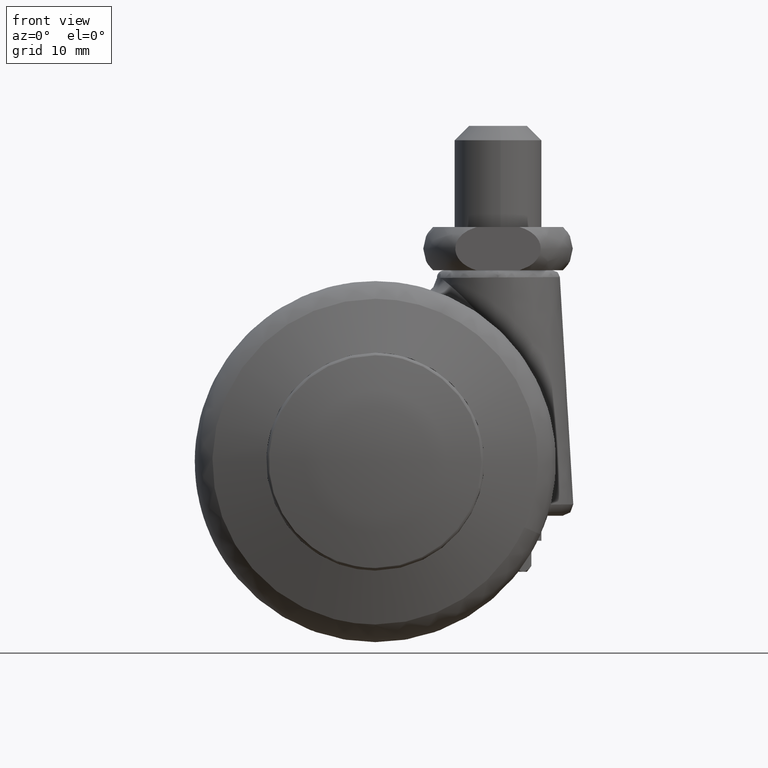
[diagram: clean part render]
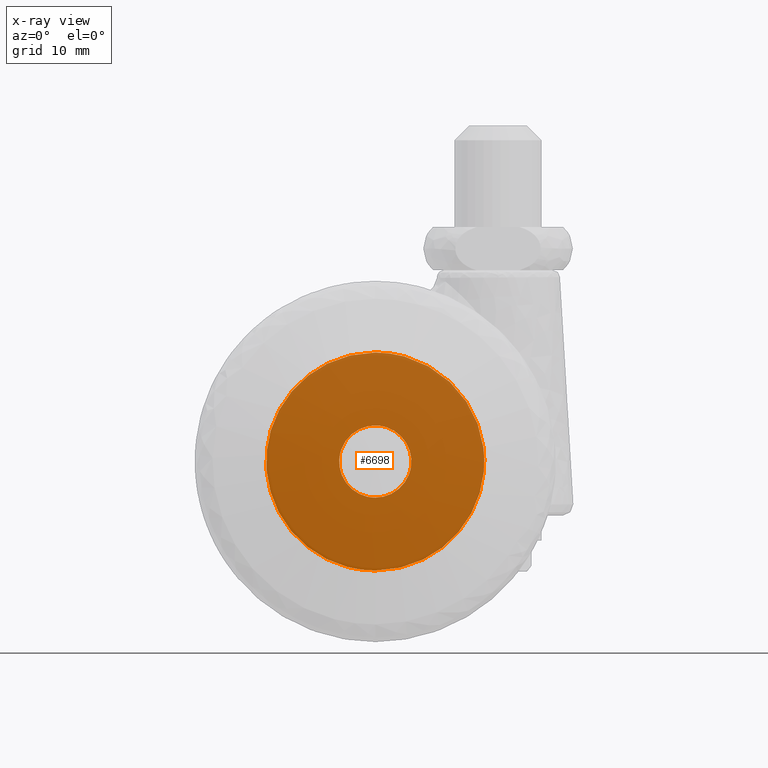
[diagram: x-ray — body ghosted, one internal face saturated and labeled with its STEP entity id]
A machine part, front view, then the same camera in x-ray: the body is ghosted and one INTERNAL B-rep face — a face not visible from any outside direction — is saturated and labeled: STEP entity #6698.
In plain terms, the highlighted face is a freeform B-spline surface patch.
Its self-contained STEP definition (entity closure, byte-faithful):
#4077=CARTESIAN_POINT('',(4.965047631809060,18.500000000000000,-0.590171173361790));
#4078=VERTEX_POINT('',#4077);
#4079=CARTESIAN_POINT('',(0.0,18.500000000000000,5.000000000000002));
#4080=VERTEX_POINT('',#4079);
#4081=CARTESIAN_POINT('',(4.965047631809060,18.500000000000007,-0.590171173361790));
#4082=CARTESIAN_POINT('',(5.0,18.500000000000004,-0.296120598338372));
#4083=CARTESIAN_POINT('',(5.0,18.500000000000000,1.789254E-015));
#4084=CARTESIAN_POINT('',(5.000000000000001,18.500000000000000,5.000000000000002));
#4085=CARTESIAN_POINT('',(0.0,18.500000000000000,5.000000000000002));
#4093=(BOUNDED_CURVE()B_SPLINE_CURVE(2,(#4081,#4082,#4083,#4084,#4085),.UNSPECIFIED.,.F.,.U.)B_SPLINE_CURVE_WITH_KNOTS((3,2,3),(0.229562473510334,0.250000000000000,0.500000000000000),.UNSPECIFIED.)CURVE()GEOMETRIC_REPRESENTATION_ITEM()RATIONAL_B_SPLINE_CURVE((0.956026754177478,0.976055948327426,1.0,0.707106781186548,1.0))REPRESENTATION_ITEM(''));
#4094=EDGE_CURVE('',#4078,#4080,#4093,.T.);
#4096=CARTESIAN_POINT('',(-4.990673992102956,18.500000000000000,0.305242697778573));
#4097=VERTEX_POINT('',#4096);
#4098=CARTESIAN_POINT('',(0.0,18.500000000000000,5.000000000000002));
#4099=CARTESIAN_POINT('',(-4.703530334331540,18.500000000000004,5.000000000000002));
#4100=CARTESIAN_POINT('',(-4.990673992102956,18.499999999999996,0.305242697778573));
#4108=(BOUNDED_CURVE()B_SPLINE_CURVE(2,(#4098,#4099,#4100),.UNSPECIFIED.,.F.,.U.)B_SPLINE_CURVE_WITH_KNOTS((3,3),(0.500000000000000,0.739332962234757),.UNSPECIFIED.)CURVE()GEOMETRIC_REPRESENTATION_ITEM()RATIONAL_B_SPLINE_CURVE((1.0,0.719603993291614,0.976072041657747))REPRESENTATION_ITEM(''));
#4109=EDGE_CURVE('',#4080,#4097,#4108,.T.);
#4176=CARTESIAN_POINT('',(0.0,18.500000000000000,-4.999999999999998));
#4177=VERTEX_POINT('',#4176);
#4178=CARTESIAN_POINT('',(0.0,18.500000000000000,-4.999999999999998));
#4179=CARTESIAN_POINT('',(4.440872629616326,18.499999999999996,-4.999999999999998));
#4180=CARTESIAN_POINT('',(4.965047631809060,18.500000000000000,-0.590171173361790));
#4188=(BOUNDED_CURVE()B_SPLINE_CURVE(2,(#4178,#4179,#4180),.UNSPECIFIED.,.F.,.U.)B_SPLINE_CURVE_WITH_KNOTS((3,3),(0.0,0.229562473510334),.UNSPECIFIED.)CURVE()GEOMETRIC_REPRESENTATION_ITEM()RATIONAL_B_SPLINE_CURVE((1.0,0.731050832859121,0.956026754177478))REPRESENTATION_ITEM(''));
#4189=EDGE_CURVE('',#4177,#4078,#4188,.T.);
#4223=CARTESIAN_POINT('',(-4.990673992102956,18.499999999999996,0.305242697778573));
#4224=CARTESIAN_POINT('',(-5.0,18.500000000000000,0.152763816597526));
#4225=CARTESIAN_POINT('',(-5.0,18.500000000000000,1.789254E-015));
#4226=CARTESIAN_POINT('',(-5.000000000000001,18.500000000000000,-4.999999999999997));
#4227=CARTESIAN_POINT('',(0.0,18.500000000000000,-4.999999999999998));
#4235=(BOUNDED_CURVE()B_SPLINE_CURVE(2,(#4223,#4224,#4225,#4226,#4227),.UNSPECIFIED.,.F.,.U.)B_SPLINE_CURVE_WITH_KNOTS((3,2,3),(0.739332962234757,0.750000000000000,1.0),.UNSPECIFIED.)CURVE()GEOMETRIC_REPRESENTATION_ITEM()RATIONAL_B_SPLINE_CURVE((0.976072041657747,0.987502787894933,1.0,0.707106781186548,1.0))REPRESENTATION_ITEM(''));
#4236=EDGE_CURVE('',#4097,#4177,#4235,.T.);
#4348=CARTESIAN_POINT('',(14.970820503738940,18.500000000000000,1.970921978229191));
#4349=VERTEX_POINT('',#4348);
#4355=CARTESIAN_POINT('',(0.0,18.500000000000000,-15.100000000000000));
#4356=VERTEX_POINT('',#4355);
#4357=CARTESIAN_POINT('',(0.0,18.500000000000000,-15.100000000000000));
#4358=CARTESIAN_POINT('',(15.100000000000005,18.500000000000004,-15.100000000000005));
#4359=CARTESIAN_POINT('',(15.100000000000000,18.500000000000000,1.789254E-015));
#4360=CARTESIAN_POINT('',(15.100000000000000,18.500000000000004,0.989694373905722));
#4361=CARTESIAN_POINT('',(14.970820503738933,18.500000000000000,1.970921978229191));
#4369=(BOUNDED_CURVE()B_SPLINE_CURVE(2,(#4357,#4358,#4359,#4360,#4361),.UNSPECIFIED.,.F.,.U.)B_SPLINE_CURVE_WITH_KNOTS((3,2,3),(0.0,0.250000000000000,0.272560351137890),.UNSPECIFIED.)CURVE()GEOMETRIC_REPRESENTATION_ITEM()RATIONAL_B_SPLINE_CURVE((1.0,0.707106781186547,1.0,0.973568904550646,0.951908167455665))REPRESENTATION_ITEM(''));
#4370=EDGE_CURVE('',#4356,#4349,#4369,.T.);
#4372=CARTESIAN_POINT('',(0.0,18.500000000000000,15.100000000000000));
#4373=VERTEX_POINT('',#4372);
#4374=CARTESIAN_POINT('',(0.0,18.500000000000000,15.100000000000000));
#4375=CARTESIAN_POINT('',(-15.100000000000005,18.500000000000004,15.100000000000005));
#4376=CARTESIAN_POINT('',(-15.100000000000000,18.500000000000000,1.789254E-015));
#4377=CARTESIAN_POINT('',(-15.100000000000005,18.500000000000004,-15.100000000000005));
#4378=CARTESIAN_POINT('',(0.0,18.500000000000000,-15.100000000000000));
#4386=(BOUNDED_CURVE()B_SPLINE_CURVE(2,(#4374,#4375,#4376,#4377,#4378),.UNSPECIFIED.,.F.,.U.)B_SPLINE_CURVE_WITH_KNOTS((3,2,3),(0.500000000000000,0.750000000000000,1.0),.UNSPECIFIED.)CURVE()GEOMETRIC_REPRESENTATION_ITEM()RATIONAL_B_SPLINE_CURVE((1.0,0.707106781186547,1.0,0.707106781186547,1.0))REPRESENTATION_ITEM(''));
#4387=EDGE_CURVE('',#4373,#4356,#4386,.T.);
#4389=CARTESIAN_POINT('',(10.334962221908979,18.500000000000000,11.009021567410640));
#4390=VERTEX_POINT('',#4389);
#4391=CARTESIAN_POINT('',(10.334962221908981,18.499999999999996,11.009021567410638));
#4392=CARTESIAN_POINT('',(5.977164986742281,18.499999999999996,15.100000000000000));
#4393=CARTESIAN_POINT('',(0.0,18.500000000000000,15.100000000000000));
#4401=(BOUNDED_CURVE()B_SPLINE_CURVE(2,(#4391,#4392,#4393),.UNSPECIFIED.,.F.,.U.)B_SPLINE_CURVE_WITH_KNOTS((3,3),(0.379763981976900,0.500000000000000),.UNSPECIFIED.)CURVE()GEOMETRIC_REPRESENTATION_ITEM()RATIONAL_B_SPLINE_CURVE((0.853766106278327,0.859134742655607,1.0))REPRESENTATION_ITEM(''));
#4402=EDGE_CURVE('',#4390,#4373,#4401,.T.);
#4444=CARTESIAN_POINT('',(14.970820503738935,18.500000000000000,1.970921978229191));
#4445=CARTESIAN_POINT('',(14.266894870835115,18.500000000000004,7.317832923904415));
#4446=CARTESIAN_POINT('',(10.334962221908981,18.499999999999996,11.009021567410638));
#4454=(BOUNDED_CURVE()B_SPLINE_CURVE(2,(#4444,#4445,#4446),.UNSPECIFIED.,.F.,.U.)B_SPLINE_CURVE_WITH_KNOTS((3,3),(0.272560351137890,0.379763981976900),.UNSPECIFIED.)CURVE()GEOMETRIC_REPRESENTATION_ITEM()RATIONAL_B_SPLINE_CURVE((0.951908167455665,0.848979376629744,0.853766106278327))REPRESENTATION_ITEM(''));
#4455=EDGE_CURVE('',#4349,#4390,#4454,.T.);
#6681=CARTESIAN_POINT('',(-16.608375599630921,18.500000000000000,-16.608490508458530));
#6682=CARTESIAN_POINT('',(-16.608375599630921,18.500000000000000,16.608490778467559));
#6683=CARTESIAN_POINT('',(16.606075392612070,18.500000000000000,-16.608490508458530));
#6684=CARTESIAN_POINT('',(16.606075392612070,18.500000000000000,16.608490778467559));
#6685=B_SPLINE_SURFACE_WITH_KNOTS('',1,1,((#6681,#6683),(#6682,#6684)),.UNSPECIFIED.,.F.,.F.,.U.,(2,2),(2,2),(0.0,33.216981286926092),(0.0,33.214450992242988),.UNSPECIFIED.);
#6686=ORIENTED_EDGE('',*,*,#4370,.T.);
#6687=ORIENTED_EDGE('',*,*,#4455,.T.);
#6688=ORIENTED_EDGE('',*,*,#4402,.T.);
#6689=ORIENTED_EDGE('',*,*,#4387,.T.);
#6690=EDGE_LOOP('',(#6686,#6687,#6688,#6689));
#6691=FACE_OUTER_BOUND('',#6690,.T.);
#6692=ORIENTED_EDGE('',*,*,#4109,.F.);
#6693=ORIENTED_EDGE('',*,*,#4094,.F.);
#6694=ORIENTED_EDGE('',*,*,#4189,.F.);
#6695=ORIENTED_EDGE('',*,*,#4236,.F.);
#6696=EDGE_LOOP('',(#6692,#6693,#6694,#6695));
#6697=FACE_BOUND('',#6696,.T.);
#6698=ADVANCED_FACE('',(#6691,#6697),#6685,.F.);